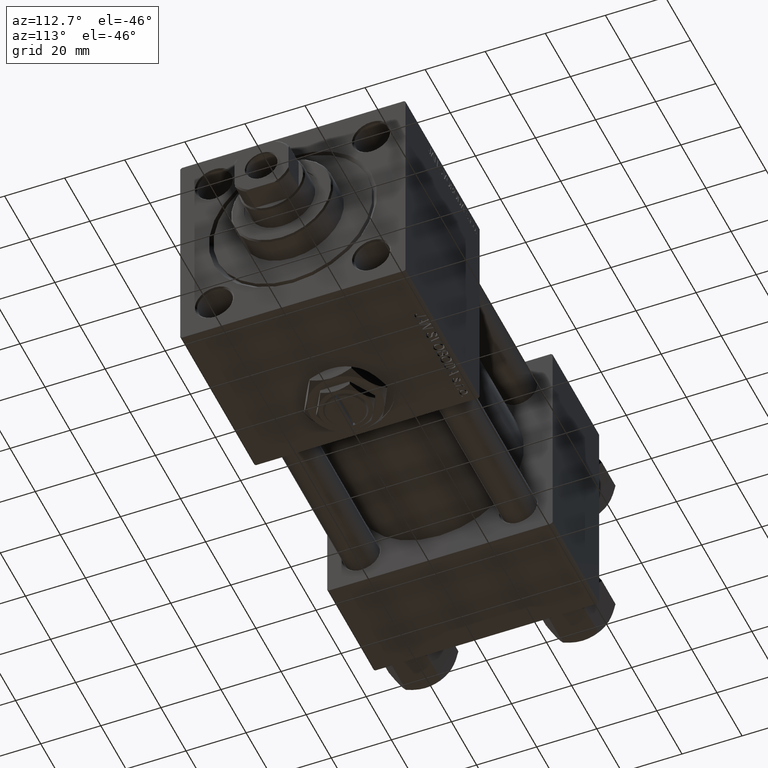
[diagram: clean part render]
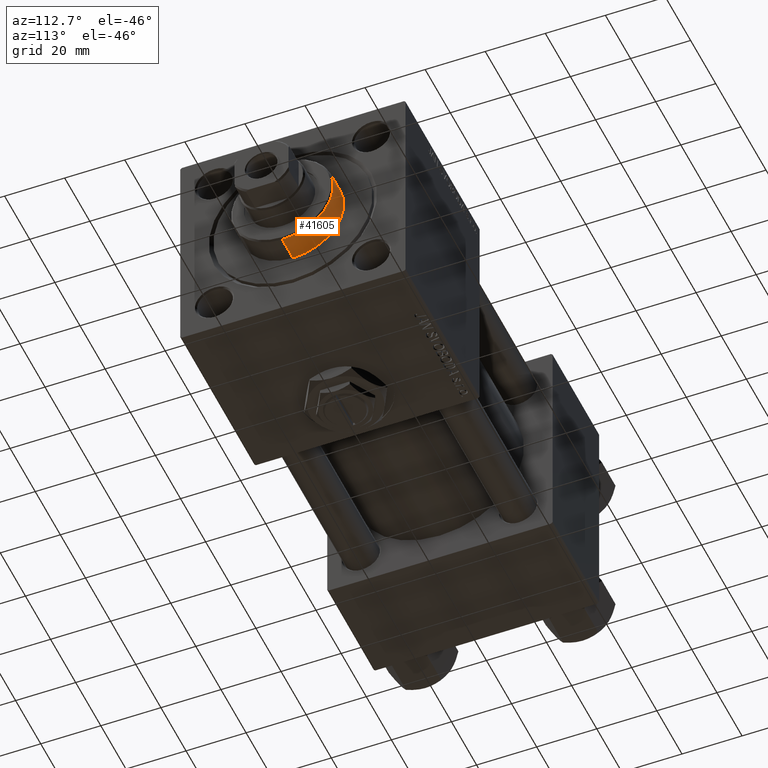
[diagram: same view with one face highlighted and labeled with its STEP entity id]
A machine part, auxiliary view. The second image highlights one B-rep face of the part: STEP entity #41605.
In plain terms, the highlighted cylindrical surface (partial cylindrical patch) has radius 17 mm, axis along (-1, -0, 0).
Its self-contained STEP definition (entity closure, byte-faithful):
#1346 = VECTOR ( 'NONE', #27271, 1000.000000000000000 ) ;
#2122 = CYLINDRICAL_SURFACE ( 'NONE', #38647, 17.00000000000000000 ) ;
#2787 = ORIENTED_EDGE ( 'NONE', *, *, #22756, .F. ) ;
#3645 = LINE ( 'NONE', #11256, #1346 ) ;
#5611 = CARTESIAN_POINT ( 'NONE',  ( 17.00000000000000000, 2.081899558550500280E-15, 28.69999999999999929 ) ) ;
#5801 = CARTESIAN_POINT ( 'NONE',  ( 0.000000000000000000, 0.000000000000000000, 37.69999999999999574 ) ) ;
#8933 = VECTOR ( 'NONE', #14923, 1000.000000000000000 ) ;
#11056 = ORIENTED_EDGE ( 'NONE', *, *, #15731, .T. ) ;
#11256 = CARTESIAN_POINT ( 'NONE',  ( 17.00000000000000000, 2.081899558550500280E-15, 37.69999999999999574 ) ) ;
#11663 = CARTESIAN_POINT ( 'NONE',  ( 0.000000000000000000, 0.000000000000000000, 28.69999999999999929 ) ) ;
#12775 = EDGE_CURVE ( 'NONE', #42245, #24940, #22116, .T. ) ;
#14923 = DIRECTION ( 'NONE',  ( -0.000000000000000000, -0.000000000000000000, -1.000000000000000000 ) ) ;
#15731 = EDGE_CURVE ( 'NONE', #22628, #47332, #38847, .T. ) ;
#16768 = DIRECTION ( 'NONE',  ( 0.000000000000000000, 0.000000000000000000, -1.000000000000000000 ) ) ;
#17021 = CARTESIAN_POINT ( 'NONE',  ( 0.000000000000000000, 0.000000000000000000, 37.19999999999999574 ) ) ;
#17096 = AXIS2_PLACEMENT_3D ( 'NONE', #17021, #16768, #20713 ) ;
#17827 = LINE ( 'NONE', #50874, #8933 ) ;
#18129 = DIRECTION ( 'NONE',  ( -0.000000000000000000, -0.000000000000000000, -1.000000000000000000 ) ) ;
#19476 = ORIENTED_EDGE ( 'NONE', *, *, #47594, .T. ) ;
#20713 = DIRECTION ( 'NONE',  ( 1.000000000000000000, 0.000000000000000000, 0.000000000000000000 ) ) ;
#21826 = DIRECTION ( 'NONE',  ( -1.000000000000000000, 0.000000000000000000, 0.000000000000000000 ) ) ;
#22116 = CIRCLE ( 'NONE', #33009, 17.00000000000000000 ) ;
#22628 = VERTEX_POINT ( 'NONE', #37504 ) ;
#22756 = EDGE_CURVE ( 'NONE', #22628, #24940, #17827, .T. ) ;
#24007 = DIRECTION ( 'NONE',  ( 0.000000000000000000, 0.000000000000000000, 1.000000000000000000 ) ) ;
#24940 = VERTEX_POINT ( 'NONE', #32003 ) ;
#27271 = DIRECTION ( 'NONE',  ( -0.000000000000000000, -0.000000000000000000, -1.000000000000000000 ) ) ;
#32003 = CARTESIAN_POINT ( 'NONE',  ( -17.00000000000000000, 0.000000000000000000, 28.69999999999999929 ) ) ;
#32645 = DIRECTION ( 'NONE',  ( 1.000000000000000000, 0.000000000000000000, 0.000000000000000000 ) ) ;
#33009 = AXIS2_PLACEMENT_3D ( 'NONE', #11663, #24007, #32645 ) ;
#37504 = CARTESIAN_POINT ( 'NONE',  ( -17.00000000000000000, 0.000000000000000000, 37.19999999999999574 ) ) ;
#37807 = FACE_OUTER_BOUND ( 'NONE', #51741, .T. ) ;
#38647 = AXIS2_PLACEMENT_3D ( 'NONE', #5801, #18129, #21826 ) ;
#38847 = CIRCLE ( 'NONE', #17096, 17.00000000000000000 ) ;
#39916 = CARTESIAN_POINT ( 'NONE',  ( 17.00000000000000000, 2.081899558550500280E-15, 37.19999999999999574 ) ) ;
#41605 = ADVANCED_FACE ( 'NONE', ( #37807 ), #2122, .T. ) ;
#42245 = VERTEX_POINT ( 'NONE', #5611 ) ;
#47332 = VERTEX_POINT ( 'NONE', #39916 ) ;
#47594 = EDGE_CURVE ( 'NONE', #47332, #42245, #3645, .T. ) ;
#50863 = ORIENTED_EDGE ( 'NONE', *, *, #12775, .T. ) ;
#50874 = CARTESIAN_POINT ( 'NONE',  ( -17.00000000000000000, 0.000000000000000000, 37.69999999999999574 ) ) ;
#51741 = EDGE_LOOP ( 'NONE', ( #11056, #19476, #50863, #2787 ) ) ;